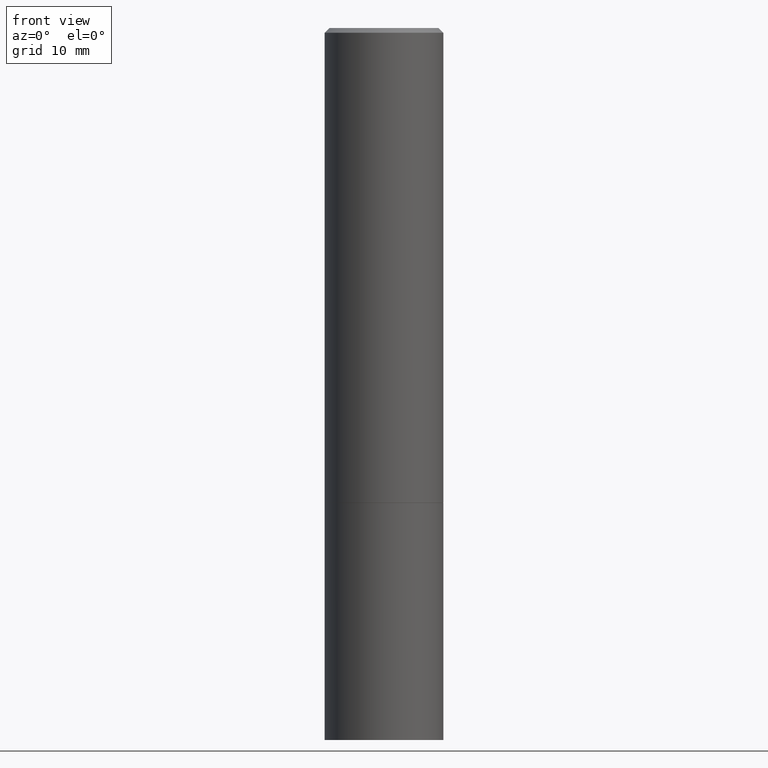
[diagram: clean part render]
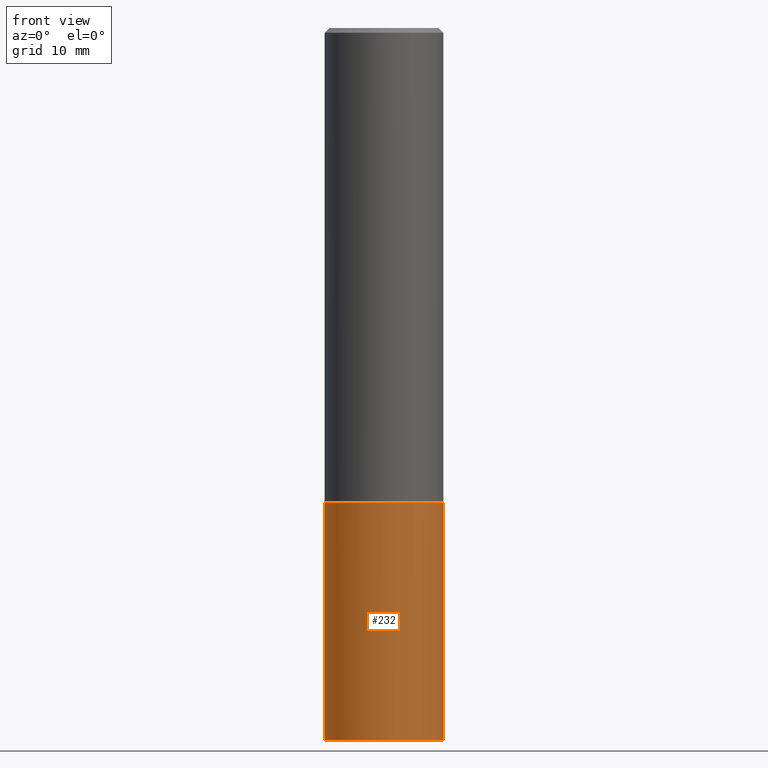
[diagram: same view with one face highlighted and labeled with its STEP entity id]
A machine part, front view. The second image highlights one B-rep face of the part: STEP entity #232.
In plain terms, the highlighted cylindrical surface (partial cylindrical patch) has radius 6.35 mm, axis along (-0, 0, 1).
Its self-contained STEP definition (entity closure, byte-faithful):
#12 = VERTEX_POINT ( 'NONE', #76 ) ;
#17 = CYLINDRICAL_SURFACE ( 'NONE', #118, 0.2500000000000000000 ) ;
#24 = EDGE_CURVE ( 'NONE', #149, #12, #227, .T. ) ;
#27 = LINE ( 'NONE', #339, #136 ) ;
#28 = DIRECTION ( 'NONE',  ( 1.000000000000000000, -6.982962677686262766E-15, 0.000000000000000000 ) ) ;
#38 = VECTOR ( 'NONE', #344, 39.37007874015748143 ) ;
#55 = EDGE_CURVE ( 'NONE', #277, #175, #113, .T. ) ;
#64 = AXIS2_PLACEMENT_3D ( 'NONE', #215, #72, #28 ) ;
#72 = DIRECTION ( 'NONE',  ( -2.445468806185136597E-29, 3.491481338843145583E-15, 1.000000000000000000 ) ) ;
#76 = CARTESIAN_POINT ( 'NONE',  ( 0.2500000000000000000, -1.222018468595100303E-14, -3.000000000000000444 ) ) ;
#113 = CIRCLE ( 'NONE', #160, 0.2500000000000000000 ) ;
#118 = AXIS2_PLACEMENT_3D ( 'NONE', #307, #203, #119 ) ;
#119 = DIRECTION ( 'NONE',  ( 1.000000000000000000, -6.982962677686266711E-15, 4.876176775795935793E-29 ) ) ;
#133 = EDGE_LOOP ( 'NONE', ( #239, #300, #178, #146 ) ) ;
#136 = VECTOR ( 'NONE', #252, 39.37007874015748143 ) ;
#143 = FACE_OUTER_BOUND ( 'NONE', #133, .T. ) ;
#146 = ORIENTED_EDGE ( 'NONE', *, *, #55, .F. ) ;
#149 = VERTEX_POINT ( 'NONE', #192 ) ;
#160 = AXIS2_PLACEMENT_3D ( 'NONE', #161, #285, #185 ) ;
#161 = CARTESIAN_POINT ( 'NONE',  ( 4.890937612370273754E-29, -6.982962677686291954E-15, -2.000000000000000444 ) ) ;
#175 = VERTEX_POINT ( 'NONE', #266 ) ;
#178 = ORIENTED_EDGE ( 'NONE', *, *, #181, .T. ) ;
#181 = EDGE_CURVE ( 'NONE', #12, #175, #264, .T. ) ;
#185 = DIRECTION ( 'NONE',  ( 1.000000000000000000, -6.982962677686266711E-15, 0.000000000000000000 ) ) ;
#192 = CARTESIAN_POINT ( 'NONE',  ( -0.2500000000000000000, -6.952346507707613689E-15, -3.000000000000000444 ) ) ;
#201 = CARTESIAN_POINT ( 'NONE',  ( 0.2500000000000000000, -1.745740669421566678E-15, 1.219044193948983948E-29 ) ) ;
#203 = DIRECTION ( 'NONE',  ( -2.445468806185136597E-29, 3.491481338843145583E-15, 1.000000000000000000 ) ) ;
#215 = CARTESIAN_POINT ( 'NONE',  ( 7.336406418555409790E-29, -1.047444401652943635E-14, -3.000000000000000444 ) ) ;
#227 = CIRCLE ( 'NONE', #64, 0.2500000000000000000 ) ;
#232 = ADVANCED_FACE ( 'NONE', ( #143 ), #17, .T. ) ;
#239 = ORIENTED_EDGE ( 'NONE', *, *, #295, .F. ) ;
#244 = CARTESIAN_POINT ( 'NONE',  ( -0.2500000000000000000, -6.952346507707613689E-15, -2.000000000000000444 ) ) ;
#252 = DIRECTION ( 'NONE',  ( -2.445468806185136877E-29, 3.491481338843145188E-15, 1.000000000000000000 ) ) ;
#264 = LINE ( 'NONE', #201, #38 ) ;
#266 = CARTESIAN_POINT ( 'NONE',  ( 0.2500000000000000000, -8.728703347107858632E-15, -2.000000000000000444 ) ) ;
#277 = VERTEX_POINT ( 'NONE', #244 ) ;
#285 = DIRECTION ( 'NONE',  ( -2.445468806185136597E-29, 3.491481338843145583E-15, 1.000000000000000000 ) ) ;
#295 = EDGE_CURVE ( 'NONE', #149, #277, #27, .T. ) ;
#300 = ORIENTED_EDGE ( 'NONE', *, *, #24, .T. ) ;
#307 = CARTESIAN_POINT ( 'NONE',  ( 0.000000000000000000, 0.000000000000000000, 0.000000000000000000 ) ) ;
#339 = CARTESIAN_POINT ( 'NONE',  ( -0.2500000000000000000, 1.776356839400250465E-15, -1.229733772563726445E-29 ) ) ;
#344 = DIRECTION ( 'NONE',  ( -2.445468806185136877E-29, 3.491481338843145188E-15, 1.000000000000000000 ) ) ;